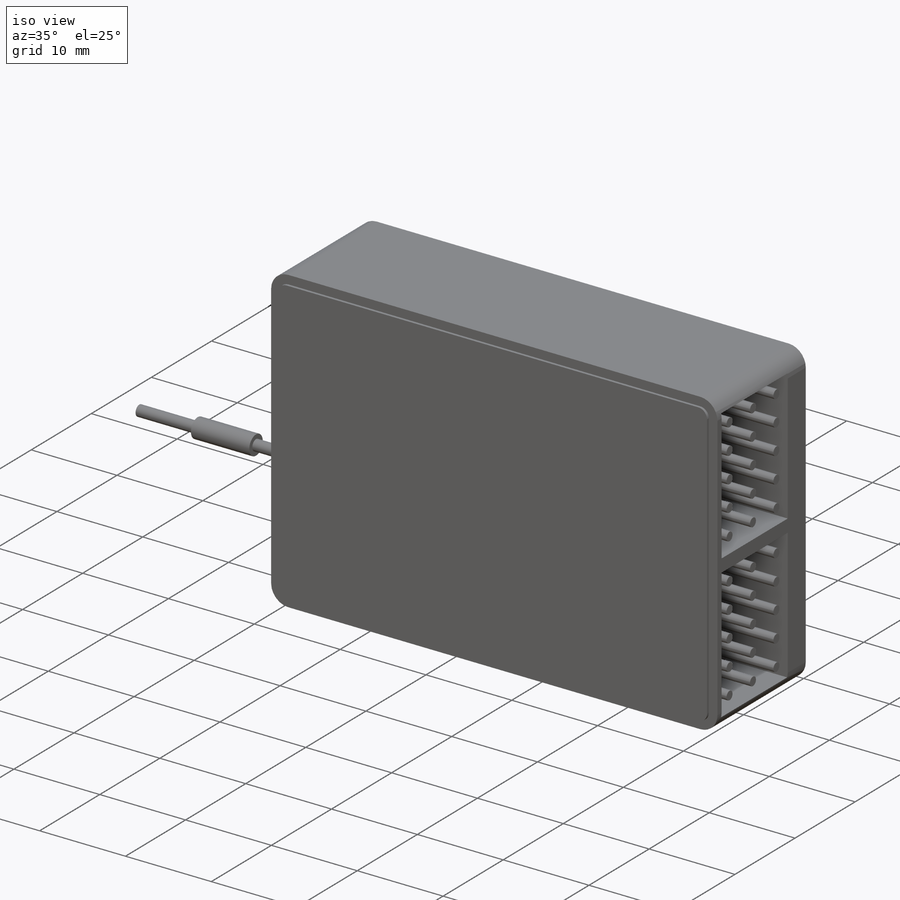
[diagram: iso view]
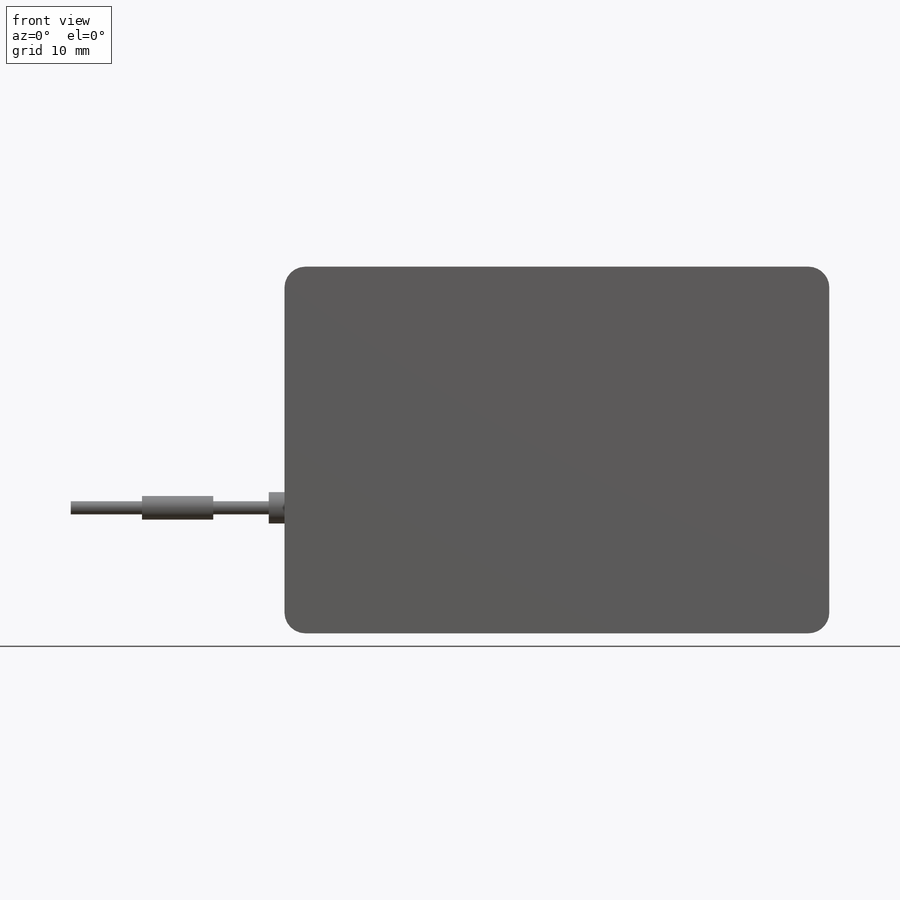
[diagram: front view]
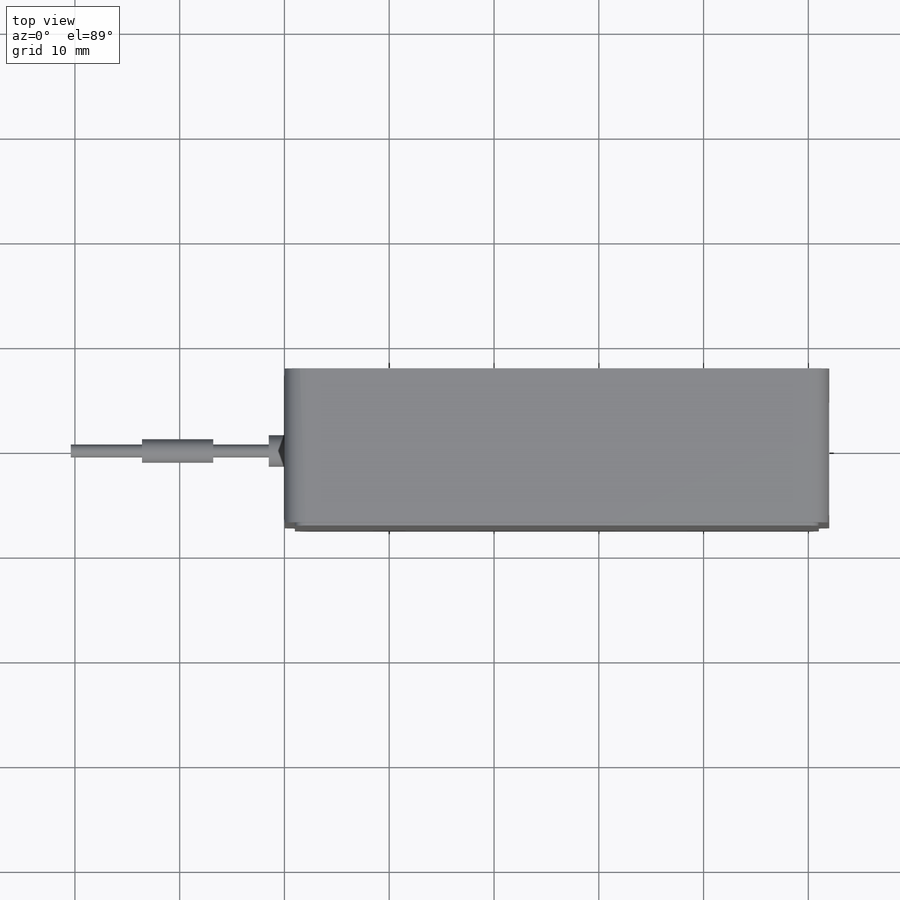
[diagram: top view]
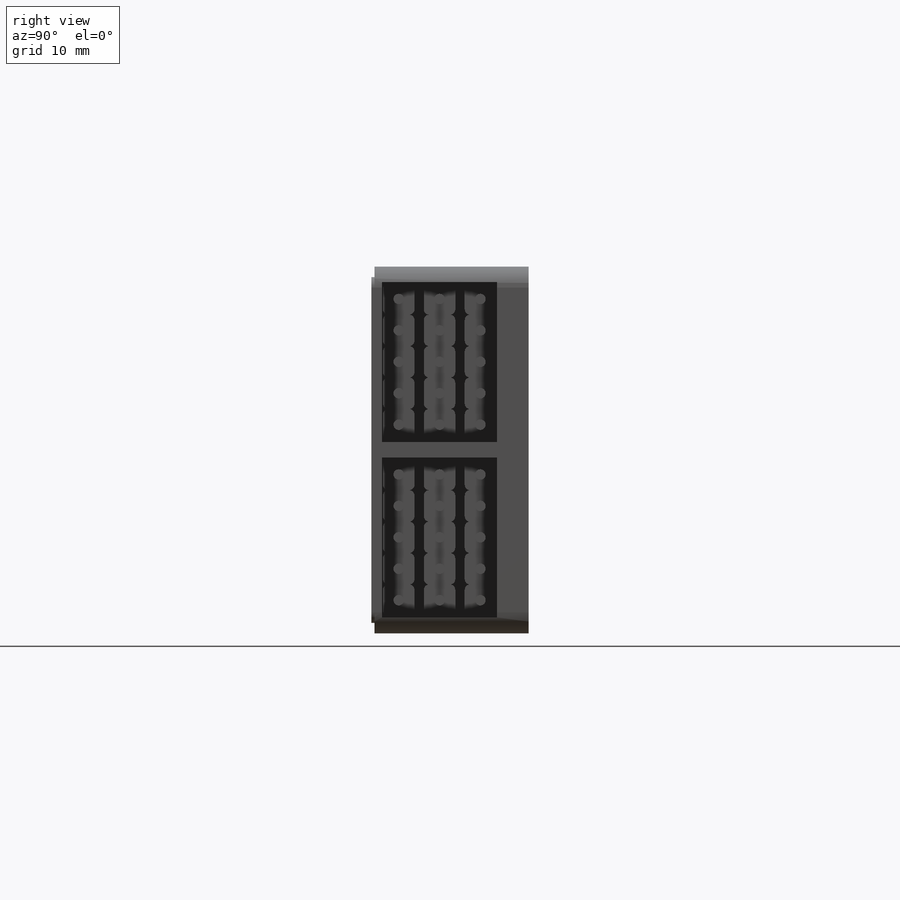
[diagram: right view]
SOLIDWORKS PART (.sldprt)
format: sldprt  version: not decoded by parser v0  size: 1,091,072 bytes
history: native  units: mm
features: sketch x9, extrude x7, pattern_linear x3, cut_extrude x2, material x1, fillet x1 (+11 scaffold rows collapsed)
feature tree (34):
  scaffold x11  (default folders/planes/origin — collapsed)
  material  "Material <not specified>"
  sketch  "Sketch1"  dims[D1=52.0mm D2=35.0mm]
  extrude  "Boss-Extrude1"  Depth=15mm
  sketch  "Sketch2"  dims[D1=1.5mm D2=1.0mm D3=3.0mm D4=1.5mm D5=1.5mm D6=15.25mm]
  cut_extrude  "Cut-Extrude1"  Depth=10mm
  fillet  "Fillet1"  Radius=2mm
  sketch  "Sketch4"  dims[D1=1.0mm]
  cut_extrude  "Cut-Extrude2"  Depth=0.3mm
  sketch  "Sketch5"  dims[D1=3.0mm D2=1.25mm]
  extrude  "Boss-Extrude2"  Depth=1.5mm
  sketch  "Sketch6"  dims[D2=0.5mm D1=3.0mm D3=0.1mm D4=0.1mm]
  extrude  "Boss-Extrude3"  Depth=3mm
  sketch  "Sketch7"  dims[D1=1.0mm]
  extrude  "Boss-Extrude4"  Depth=6.8mm
  pattern_linear  "LPattern1"  Count1=3 Count2=1 Spacing1=3.9mm Spacing2=10mm
  pattern_linear  "LPattern2"  Count1=5 Count2=1 Spacing1=3mm Spacing2=10mm
  pattern_linear  "LPattern4"  Count1=2 Count2=1 Spacing1=16.75mm Spacing2=10mm
  sketch  "Sketch8"
  extrude  "Boss-Extrude5"  Depth=6.8mm
  sketch  "Sketch9"  dims[D1=0.5mm]
  extrude  "Boss-Extrude6"  Depth=6.8mm
  sketch  "Sketch10"
  extrude  "Boss-Extrude7"  Depth=6.8mm
decode coverage: 20 of 22 modeling features carry decoded parameters
note: suppression state not decoded; provenance and decode notes live in map.json
